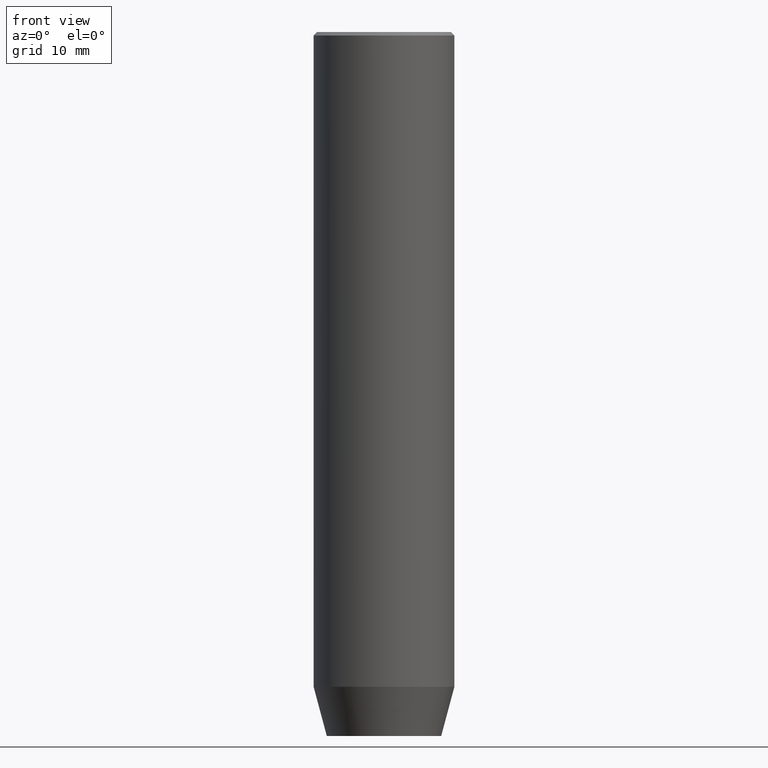
[diagram: clean part render]
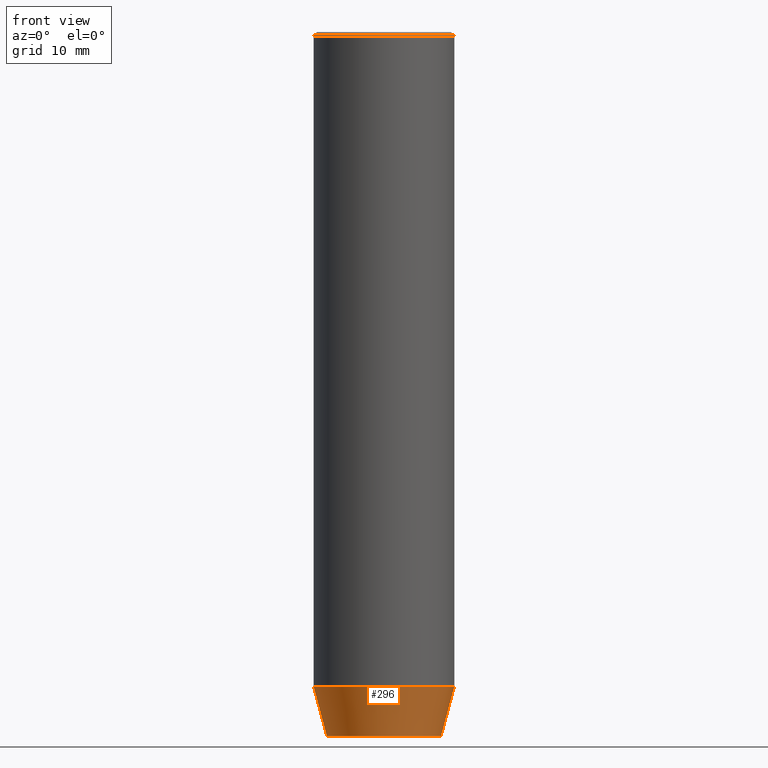
[diagram: same view with one face highlighted and labeled with its STEP entity id]
A machine part, front view. The second image highlights one B-rep face of the part: STEP entity #296.
In plain terms, the highlighted conical surface has half-angle 15 deg.
Its self-contained STEP definition (entity closure, byte-faithful):
#8 = EDGE_CURVE ( 'NONE', #567, #415, #277, .T. ) ;
#28 = DIRECTION ( 'NONE',  ( 1.000000000000000000, 0.000000000000000000, 0.000000000000000000 ) ) ;
#41 = EDGE_CURVE ( 'NONE', #507, #66, #100, .T. ) ;
#62 = CARTESIAN_POINT ( 'NONE',  ( 10.00000000000000000, 0.000000000000000000, -93.00000000000000000 ) ) ;
#66 = VERTEX_POINT ( 'NONE', #286 ) ;
#81 = CARTESIAN_POINT ( 'NONE',  ( 8.124355652982135467, 0.000000000000000000, -100.0000000000000000 ) ) ;
#100 = LINE ( 'NONE', #154, #115 ) ;
#115 = VECTOR ( 'NONE', #562, 1000.000000000000000 ) ;
#117 = CARTESIAN_POINT ( 'NONE',  ( -8.124355652982135467, 1.109796706851640556E-15, -100.0000000000000000 ) ) ;
#120 = CARTESIAN_POINT ( 'NONE',  ( 0.000000000000000000, 0.000000000000000000, -93.00000000000000000 ) ) ;
#125 = DIRECTION ( 'NONE',  ( -0.000000000000000000, -0.000000000000000000, 1.000000000000000000 ) ) ;
#145 = ORIENTED_EDGE ( 'NONE', *, *, #8, .T. ) ;
#154 = CARTESIAN_POINT ( 'NONE',  ( -10.00000000000000000, 1.224646799147353256E-15, -93.00000000000000000 ) ) ;
#164 = CIRCLE ( 'NONE', #459, 10.00000000000000000 ) ;
#174 = CARTESIAN_POINT ( 'NONE',  ( 0.000000000000000000, 0.000000000000000000, -93.00000000000000000 ) ) ;
#176 = CONICAL_SURFACE ( 'NONE', #551, 10.00000000000000000, 0.2617993877991500740 ) ;
#216 = DIRECTION ( 'NONE',  ( -0.000000000000000000, -0.000000000000000000, 1.000000000000000000 ) ) ;
#238 = EDGE_CURVE ( 'NONE', #507, #567, #408, .T. ) ;
#277 = LINE ( 'NONE', #279, #363 ) ;
#279 = CARTESIAN_POINT ( 'NONE',  ( 10.00000000000000000, 0.000000000000000000, -93.00000000000000000 ) ) ;
#286 = CARTESIAN_POINT ( 'NONE',  ( -10.00000000000000000, 1.224646799147353256E-15, -93.00000000000000000 ) ) ;
#296 = ADVANCED_FACE ( 'NONE', ( #582 ), #176, .T. ) ;
#353 = DIRECTION ( 'NONE',  ( -0.000000000000000000, -0.000000000000000000, 1.000000000000000000 ) ) ;
#363 = VECTOR ( 'NONE', #508, 1000.000000000000000 ) ;
#386 = ORIENTED_EDGE ( 'NONE', *, *, #546, .F. ) ;
#388 = EDGE_LOOP ( 'NONE', ( #406, #519, #145, #386 ) ) ;
#398 = DIRECTION ( 'NONE',  ( 1.000000000000000000, 0.000000000000000000, 0.000000000000000000 ) ) ;
#406 = ORIENTED_EDGE ( 'NONE', *, *, #41, .F. ) ;
#408 = CIRCLE ( 'NONE', #487, 8.124355652982135467 ) ;
#415 = VERTEX_POINT ( 'NONE', #62 ) ;
#438 = CARTESIAN_POINT ( 'NONE',  ( 0.000000000000000000, 0.000000000000000000, -100.0000000000000000 ) ) ;
#459 = AXIS2_PLACEMENT_3D ( 'NONE', #120, #216, #398 ) ;
#487 = AXIS2_PLACEMENT_3D ( 'NONE', #438, #125, #28 ) ;
#507 = VERTEX_POINT ( 'NONE', #117 ) ;
#508 = DIRECTION ( 'NONE',  ( 0.2588190451025213501, 0.000000000000000000, 0.9659258262890680902 ) ) ;
#519 = ORIENTED_EDGE ( 'NONE', *, *, #238, .T. ) ;
#538 = DIRECTION ( 'NONE',  ( 1.000000000000000000, 0.000000000000000000, 0.000000000000000000 ) ) ;
#546 = EDGE_CURVE ( 'NONE', #66, #415, #164, .T. ) ;
#551 = AXIS2_PLACEMENT_3D ( 'NONE', #174, #353, #538 ) ;
#562 = DIRECTION ( 'NONE',  ( -0.2588190451025213501, 3.169619151431772337E-17, 0.9659258262890680902 ) ) ;
#567 = VERTEX_POINT ( 'NONE', #81 ) ;
#582 = FACE_OUTER_BOUND ( 'NONE', #388, .T. ) ;